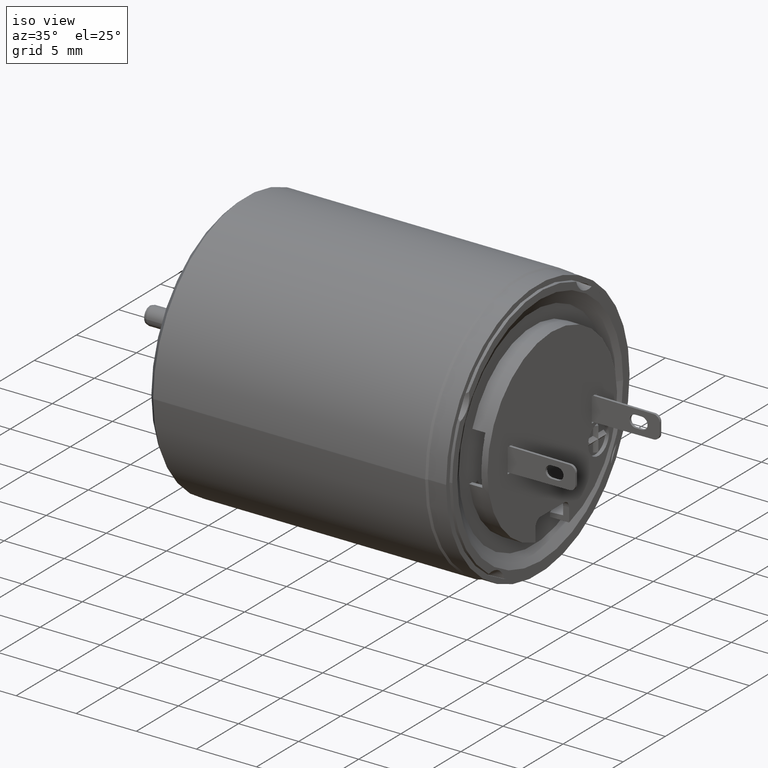
[diagram: clean part render]
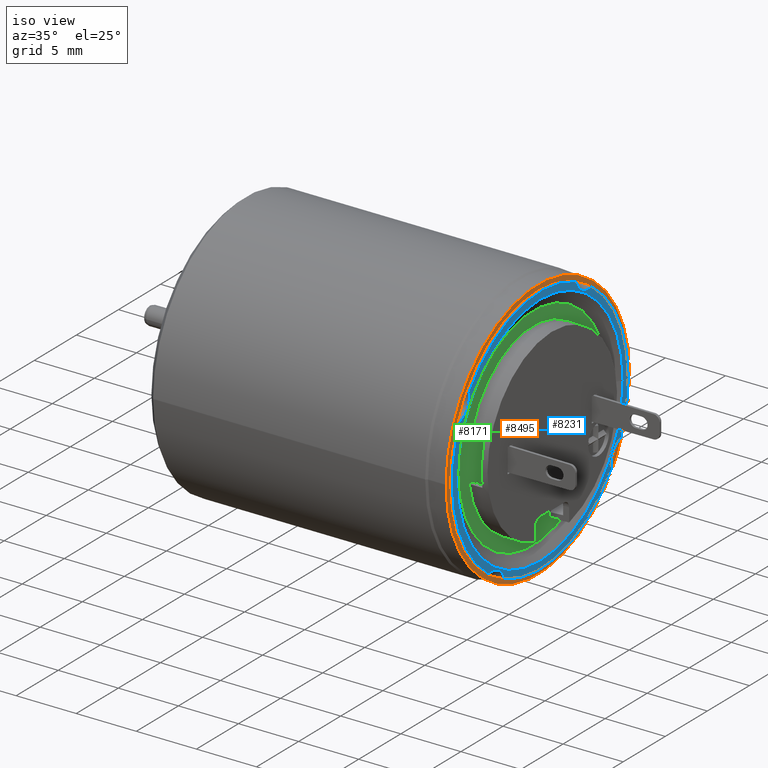
[diagram: same view with three faces highlighted in distinct colors, each labeled with its STEP entity id]
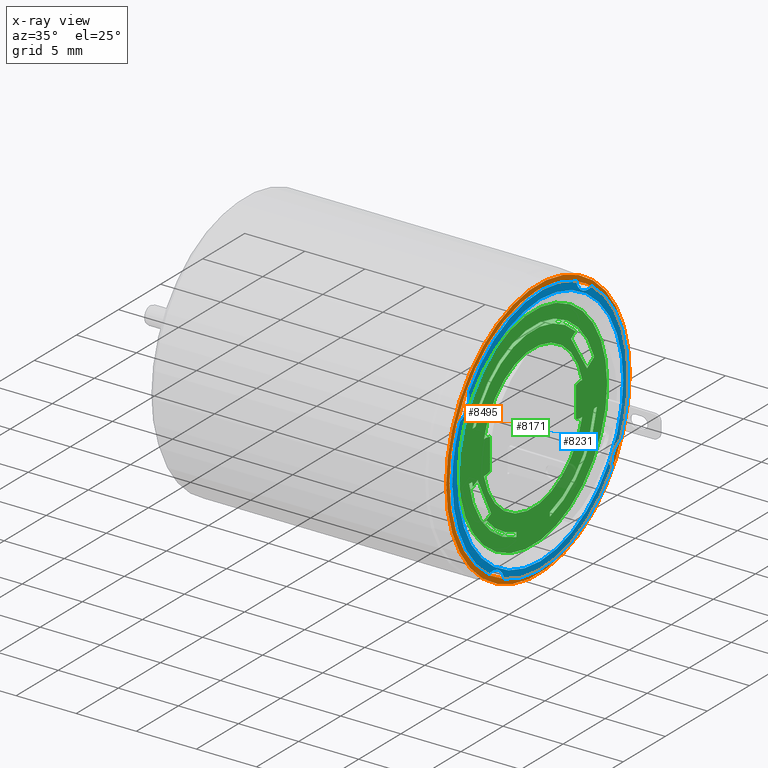
[diagram: x-ray of the same camera — body ghosted, the three highlighted faces saturated]
A machine part, iso view with three faces highlighted in distinct colors.
The next image is the same camera in x-ray (body ghosted, the three faces saturated) — at least one of them is partly hidden behind the body in this view.
Their STEP definitions:

[orange] entity #8495 — the highlighted planar face has unit normal (1, 0, 0).
#2387=CARTESIAN_POINT('',(8.9E0,1.115653234024E-14,0.E0));
#2388=DIRECTION('',(-1.E0,0.E0,0.E0));
#2389=DIRECTION('',(0.E0,1.E0,0.E0));
#2390=AXIS2_PLACEMENT_3D('',#2387,#2388,#2389);
#2392=CARTESIAN_POINT('',(8.9E0,1.115653234024E-14,0.E0));
#2393=DIRECTION('',(-1.E0,0.E0,0.E0));
#2394=DIRECTION('',(0.E0,-1.E0,0.E0));
#2395=AXIS2_PLACEMENT_3D('',#2392,#2393,#2394);
#2397=CARTESIAN_POINT('',(8.9E0,1.115653234024E-14,0.E0));
#2398=DIRECTION('',(1.E0,0.E0,0.E0));
#2399=DIRECTION('',(0.E0,1.E0,0.E0));
#2400=AXIS2_PLACEMENT_3D('',#2397,#2398,#2399);
#2402=CARTESIAN_POINT('',(8.9E0,1.115653234024E-14,0.E0));
#2403=DIRECTION('',(1.E0,0.E0,0.E0));
#2404=DIRECTION('',(0.E0,-1.E0,0.E0));
#2405=AXIS2_PLACEMENT_3D('',#2402,#2403,#2404);
#4421=CARTESIAN_POINT('',(8.9E0,1.05E1,0.E0));
#4422=VERTEX_POINT('',#4421);
#4423=CARTESIAN_POINT('',(8.9E0,-1.05E1,0.E0));
#4424=VERTEX_POINT('',#4423);
#4425=CARTESIAN_POINT('',(8.9E0,1.09E1,0.E0));
#4426=CARTESIAN_POINT('',(8.9E0,-1.09E1,0.E0));
#4427=VERTEX_POINT('',#4425);
#4428=VERTEX_POINT('',#4426);
#8480=CARTESIAN_POINT('',(8.9E0,1.065814103640E-14,0.E0));
#8481=DIRECTION('',(1.E0,0.E0,0.E0));
#8482=DIRECTION('',(0.E0,1.E0,0.E0));
#8483=AXIS2_PLACEMENT_3D('',#8480,#8481,#8482);
#8484=PLANE('',#8483);
#8486=ORIENTED_EDGE('',*,*,#8485,.T.);
#8488=ORIENTED_EDGE('',*,*,#8487,.T.);
#8489=EDGE_LOOP('',(#8486,#8488));
#8490=FACE_OUTER_BOUND('',#8489,.F.);
#8491=ORIENTED_EDGE('',*,*,#8462,.T.);
#8492=ORIENTED_EDGE('',*,*,#8473,.T.);
#8493=EDGE_LOOP('',(#8491,#8492));
#8494=FACE_BOUND('',#8493,.F.);
#8495=ADVANCED_FACE('',(#8490,#8494),#8484,.T.);
#2391=CIRCLE('',#2390,1.09E1);
#2396=CIRCLE('',#2395,1.09E1);
#2401=CIRCLE('',#2400,1.05E1);
#2406=CIRCLE('',#2405,1.05E1);
#8462=EDGE_CURVE('',#4422,#4424,#2401,.T.);
#8473=EDGE_CURVE('',#4424,#4422,#2406,.T.);
#8485=EDGE_CURVE('',#4427,#4428,#2391,.T.);
#8487=EDGE_CURVE('',#4428,#4427,#2396,.T.);

[blue] entity #8231 — the highlighted planar face has unit normal (1, 0, 0).
#2165=CARTESIAN_POINT('',(9.100000000002E0,-5.725E0,-9.915990873332E0));
#2166=DIRECTION('',(1.E0,0.E0,0.E0));
#2167=DIRECTION('',(0.E0,9.673882588756E-1,2.532981574935E-1));
#2168=AXIS2_PLACEMENT_3D('',#2165,#2166,#2167);
#2170=CARTESIAN_POINT('',(9.1E0,1.113203940425E-14,0.E0));
#2171=DIRECTION('',(-1.E0,0.E0,0.E0));
#2172=DIRECTION('',(0.E0,-5.857892091364E-1,-8.104634491816E-1));
#2173=AXIS2_PLACEMENT_3D('',#2170,#2171,#2172);
#2175=CARTESIAN_POINT('',(9.1E0,1.113203940425E-14,0.E0));
#2176=DIRECTION('',(-1.E0,0.E0,0.E0));
#2177=DIRECTION('',(0.E0,-1.E0,4.521635591201E-14));
#2178=AXIS2_PLACEMENT_3D('',#2175,#2176,#2177);
#2180=CARTESIAN_POINT('',(9.100000000002E0,-9.915990873332E0,5.725E0));
#2181=DIRECTION('',(1.E0,0.E0,0.E0));
#2182=DIRECTION('',(0.E0,2.532981574937E-1,-9.673882588756E-1));
#2183=AXIS2_PLACEMENT_3D('',#2180,#2181,#2182);
#2185=CARTESIAN_POINT('',(9.1E0,1.113203940425E-14,0.E0));
#2186=DIRECTION('',(-1.E0,0.E0,0.E0));
#2187=DIRECTION('',(0.E0,-8.104634491816E-1,5.857892091364E-1));
#2188=AXIS2_PLACEMENT_3D('',#2185,#2186,#2187);
#2190=CARTESIAN_POINT('',(9.100000000002E0,5.725E0,9.915990873332E0));
#2191=DIRECTION('',(1.E0,0.E0,0.E0));
#2192=DIRECTION('',(0.E0,-9.673882588756E-1,-2.532981574937E-1));
#2193=AXIS2_PLACEMENT_3D('',#2190,#2191,#2192);
#2195=CARTESIAN_POINT('',(9.1E0,1.113203940425E-14,0.E0));
#2196=DIRECTION('',(-1.E0,0.E0,0.E0));
#2197=DIRECTION('',(0.E0,5.857892091364E-1,8.104634491816E-1));
#2198=AXIS2_PLACEMENT_3D('',#2195,#2196,#2197);
#2200=CARTESIAN_POINT('',(9.1E0,1.113203940425E-14,0.E0));
#2201=DIRECTION('',(-1.E0,0.E0,0.E0));
#2202=DIRECTION('',(0.E0,1.E0,0.E0));
#2203=AXIS2_PLACEMENT_3D('',#2200,#2201,#2202);
#2205=CARTESIAN_POINT('',(9.100000000002E0,9.915990873332E0,-5.725E0));
#2206=DIRECTION('',(1.E0,0.E0,0.E0));
#2207=DIRECTION('',(0.E0,-2.532981574937E-1,9.673882588756E-1));
#2208=AXIS2_PLACEMENT_3D('',#2205,#2206,#2207);
#2210=CARTESIAN_POINT('',(9.1E0,1.113203940425E-14,0.E0));
#2211=DIRECTION('',(-1.E0,0.E0,0.E0));
#2212=DIRECTION('',(0.E0,8.104634491816E-1,-5.857892091364E-1));
#2213=AXIS2_PLACEMENT_3D('',#2210,#2211,#2212);
#2215=CARTESIAN_POINT('',(9.1E0,1.113203940422E-14,0.E0));
#2216=DIRECTION('',(1.E0,0.E0,0.E0));
#2217=DIRECTION('',(0.E0,-1.E0,0.E0));
#2218=AXIS2_PLACEMENT_3D('',#2215,#2216,#2217);
#2220=CARTESIAN_POINT('',(9.1E0,1.113203940422E-14,0.E0));
#2221=DIRECTION('',(1.E0,0.E0,0.E0));
#2222=DIRECTION('',(0.E0,1.E0,0.E0));
#2223=AXIS2_PLACEMENT_3D('',#2220,#2221,#2222);
#4696=CARTESIAN_POINT('',(9.1E0,9.85E0,0.E0));
#4698=VERTEX_POINT('',#4696);
#4701=CARTESIAN_POINT('',(9.1E0,-9.85E0,0.E0));
#4702=VERTEX_POINT('',#4701);
#4703=CARTESIAN_POINT('',(9.100000000002E0,-4.273917611690E0,
-9.536043637093E0));
#4704=CARTESIAN_POINT('',(9.100000000002E0,-6.121497235474E0,
-8.469343043951E0));
#4705=VERTEX_POINT('',#4703);
#4706=VERTEX_POINT('',#4704);
#4713=CARTESIAN_POINT('',(9.1E0,-1.045E1,4.733990977002E-13));
#4714=VERTEX_POINT('',#4713);
#4715=CARTESIAN_POINT('',(9.1E0,8.469343043948E0,-6.121497235475E0));
#4716=VERTEX_POINT('',#4715);
#4717=CARTESIAN_POINT('',(9.1E0,1.045E1,0.E0));
#4718=CARTESIAN_POINT('',(9.1E0,9.536043637092E0,-4.273917611687E0));
#4719=VERTEX_POINT('',#4717);
#4720=VERTEX_POINT('',#4718);
#4745=CARTESIAN_POINT('',(9.1E0,6.121497235475E0,8.469343043948E0));
#4746=VERTEX_POINT('',#4745);
#4747=CARTESIAN_POINT('',(9.1E0,-8.469343043948E0,6.121497235475E0));
#4748=CARTESIAN_POINT('',(9.1E0,4.273917611687E0,9.536043637091E0));
#4749=VERTEX_POINT('',#4747);
#4750=VERTEX_POINT('',#4748);
#4751=CARTESIAN_POINT('',(9.1E0,-9.536043637091E0,4.273917611687E0));
#4752=VERTEX_POINT('',#4751);
#8200=CARTESIAN_POINT('',(9.1E0,0.E0,0.E0));
#8201=DIRECTION('',(1.E0,0.E0,0.E0));
#8202=DIRECTION('',(0.E0,1.E0,0.E0));
#8203=AXIS2_PLACEMENT_3D('',#8200,#8201,#8202);
#8204=PLANE('',#8203);
#8206=ORIENTED_EDGE('',*,*,#8205,.T.);
#8208=ORIENTED_EDGE('',*,*,#8207,.T.);
#8210=ORIENTED_EDGE('',*,*,#8209,.T.);
#8212=ORIENTED_EDGE('',*,*,#8211,.T.);
#8214=ORIENTED_EDGE('',*,*,#8213,.T.);
#8216=ORIENTED_EDGE('',*,*,#8215,.T.);
#8218=ORIENTED_EDGE('',*,*,#8217,.T.);
#8220=ORIENTED_EDGE('',*,*,#8219,.T.);
#8222=ORIENTED_EDGE('',*,*,#8221,.T.);
#8224=ORIENTED_EDGE('',*,*,#8223,.T.);
#8225=EDGE_LOOP('',(#8206,#8208,#8210,#8212,#8214,#8216,#8218,#8220,#8222,
#8224));
#8226=FACE_OUTER_BOUND('',#8225,.F.);
#8227=ORIENTED_EDGE('',*,*,#8193,.T.);
#8228=ORIENTED_EDGE('',*,*,#8182,.T.);
#8229=EDGE_LOOP('',(#8227,#8228));
#8230=FACE_BOUND('',#8229,.F.);
#8231=ADVANCED_FACE('',(#8226,#8230),#8204,.T.);
#2169=CIRCLE('',#2168,1.499999999997E0);
#2174=CIRCLE('',#2173,1.045E1);
#2179=CIRCLE('',#2178,1.045E1);
#2184=CIRCLE('',#2183,1.499999999997E0);
#2189=CIRCLE('',#2188,1.045E1);
#2194=CIRCLE('',#2193,1.499999999997E0);
#2199=CIRCLE('',#2198,1.045E1);
#2204=CIRCLE('',#2203,1.045E1);
#2209=CIRCLE('',#2208,1.499999999997E0);
#2214=CIRCLE('',#2213,1.045E1);
#2219=CIRCLE('',#2218,9.85E0);
#2224=CIRCLE('',#2223,9.85E0);
#8182=EDGE_CURVE('',#4698,#4702,#2224,.T.);
#8193=EDGE_CURVE('',#4702,#4698,#2219,.T.);
#8205=EDGE_CURVE('',#4705,#4706,#2169,.T.);
#8207=EDGE_CURVE('',#4706,#4714,#2174,.T.);
#8209=EDGE_CURVE('',#4714,#4752,#2179,.T.);
#8211=EDGE_CURVE('',#4752,#4749,#2184,.T.);
#8213=EDGE_CURVE('',#4749,#4750,#2189,.T.);
#8215=EDGE_CURVE('',#4750,#4746,#2194,.T.);
#8217=EDGE_CURVE('',#4746,#4719,#2199,.T.);
#8219=EDGE_CURVE('',#4719,#4720,#2204,.T.);
#8221=EDGE_CURVE('',#4720,#4716,#2209,.T.);
#8223=EDGE_CURVE('',#4716,#4705,#2214,.T.);

[green] entity #8171 — the highlighted planar face has unit normal (1, 0, 0).
#2003=CARTESIAN_POINT('',(8.5E0,1.120551821217E-14,0.E0));
#2004=DIRECTION('',(-1.E0,0.E0,0.E0));
#2005=DIRECTION('',(0.E0,-1.E0,0.E0));
#2006=AXIS2_PLACEMENT_3D('',#2003,#2004,#2005);
#2008=CARTESIAN_POINT('',(8.5E0,1.120551821217E-14,0.E0));
#2009=DIRECTION('',(-1.E0,0.E0,0.E0));
#2010=DIRECTION('',(0.E0,1.E0,0.E0));
#2011=AXIS2_PLACEMENT_3D('',#2008,#2009,#2010);
#2013=CARTESIAN_POINT('',(8.5E0,1.044976660676E-13,0.E0));
#2014=DIRECTION('',(1.E0,-1.005529260564E-14,0.E0));
#2015=DIRECTION('',(0.E0,9.728982300885E-1,2.312337213528E-1));
#2016=AXIS2_PLACEMENT_3D('',#2013,#2014,#2015);
#2018=CARTESIAN_POINT('',(8.5E0,-5.65E0,0.E0));
#2019=DIRECTION('',(-1.E0,0.E0,0.E0));
#2020=DIRECTION('',(0.E0,-1.338495575221E-1,9.910016629406E-1));
#2021=AXIS2_PLACEMENT_3D('',#2018,#2019,#2020);
#2023=DIRECTION('',(0.E0,1.E0,8.623160209045E-13));
#2024=VECTOR('',#2023,3.038475772916E-2);
#2025=CARTESIAN_POINT('',(8.5E0,-5.130384757729E0,1.3E0));
#2026=LINE('',#2025,#2024);
#2027=DIRECTION('',(0.E0,0.E0,-1.E0));
#2028=VECTOR('',#2027,2.6E0);
#2029=CARTESIAN_POINT('',(8.5E0,-5.1E0,1.3E0));
#2030=LINE('',#2029,#2028);
#2031=CARTESIAN_POINT('',(8.5E0,-5.65E0,0.E0));
#2032=DIRECTION('',(-1.E0,0.E0,0.E0));
#2033=DIRECTION('',(0.E0,3.711537444793E-1,-9.285714285713E-1));
#2034=AXIS2_PLACEMENT_3D('',#2031,#2032,#2033);
#2036=CARTESIAN_POINT('',(8.5E0,-5.65E0,0.E0));
#2037=DIRECTION('',(-1.E0,0.E0,0.E0));
#2038=DIRECTION('',(0.E0,0.E0,-1.E0));
#2039=AXIS2_PLACEMENT_3D('',#2036,#2037,#2038);
#2041=CARTESIAN_POINT('',(8.5E0,1.044976660676E-13,0.E0));
#2042=DIRECTION('',(1.E0,-1.005529260564E-14,0.E0));
#2043=DIRECTION('',(0.E0,-9.728982300885E-1,-2.312337213528E-1));
#2044=AXIS2_PLACEMENT_3D('',#2041,#2042,#2043);
#2046=CARTESIAN_POINT('',(8.5E0,5.65E0,0.E0));
#2047=DIRECTION('',(-1.E0,0.E0,0.E0));
#2048=DIRECTION('',(0.E0,1.338495575222E-1,-9.910016629406E-1));
#2049=AXIS2_PLACEMENT_3D('',#2046,#2047,#2048);
#2051=CARTESIAN_POINT('',(8.5E0,5.65E0,0.E0));
#2052=DIRECTION('',(-1.E0,0.E0,0.E0));
#2053=DIRECTION('',(0.E0,0.E0,-1.E0));
#2054=AXIS2_PLACEMENT_3D('',#2051,#2052,#2053);
#2056=CARTESIAN_POINT('',(8.5E0,5.65E0,0.E0));
#2057=DIRECTION('',(-1.E0,0.E0,0.E0));
#2058=DIRECTION('',(0.E0,-3.711537444793E-1,9.285714285713E-1));
#2059=AXIS2_PLACEMENT_3D('',#2056,#2057,#2058);
#2061=CARTESIAN_POINT('',(8.5E0,1.120551821220E-14,0.E0));
#2062=DIRECTION('',(1.E0,0.E0,0.E0));
#2063=DIRECTION('',(0.E0,2.597402597403E-1,-9.656785166245E-1));
#2064=AXIS2_PLACEMENT_3D('',#2061,#2062,#2063);
#2066=DIRECTION('',(0.E0,-1.E0,0.E0));
#2067=VECTOR('',#2066,3.475748986508E-1);
#2068=CARTESIAN_POINT('',(8.5E0,7.589466384404E0,-1.3E0));
#2069=LINE('',#2068,#2067);
#2070=CARTESIAN_POINT('',(8.5E0,0.E0,0.E0));
#2071=DIRECTION('',(1.E0,0.E0,0.E0));
#2072=DIRECTION('',(0.E0,2.718259759825E-1,-9.623464234781E-1));
#2073=AXIS2_PLACEMENT_3D('',#2070,#2071,#2072);
#2075=DIRECTION('',(0.E0,0.E0,-1.E0));
#2076=VECTOR('',#2075,3.551178037676E-1);
#2077=CARTESIAN_POINT('',(8.5E0,2.E0,-7.080606774241E0));
#2078=LINE('',#2077,#2076);
#2079=CARTESIAN_POINT('',(8.5E0,1.120551821220E-14,0.E0));
#2080=DIRECTION('',(1.E0,0.E0,0.E0));
#2081=DIRECTION('',(0.E0,9.365068247958E-1,3.506493506494E-1));
#2082=AXIS2_PLACEMENT_3D('',#2079,#2080,#2081);
#2084=DIRECTION('',(0.E0,1.E0,1.331919927738E-14));
#2085=VECTOR('',#2084,3.667623861329E-1);
#2086=CARTESIAN_POINT('',(8.5E0,-7.211102550928E0,2.7E0));
#2087=LINE('',#2086,#2085);
#2088=CARTESIAN_POINT('',(8.5E0,0.E0,0.E0));
#2089=DIRECTION('',(1.E0,0.E0,0.E0));
#2090=DIRECTION('',(0.E0,6.884869095566E-1,7.252487679199E-1));
#2091=AXIS2_PLACEMENT_3D('',#2088,#2089,#2090);
#2093=DIRECTION('',(0.E0,8.412277974367E-1,5.406808604157E-1));
#2094=VECTOR('',#2093,5.936586777669E-2);
#2095=CARTESIAN_POINT('',(8.5E0,5.015704498565E0,5.304027562436E0));
#2096=LINE('',#2095,#2094);
#2097=DIRECTION('',(0.E0,-8.412277974359E-1,-5.406808604169E-1));
#2098=VECTOR('',#2097,5.871362340511E-1);
#2099=CARTESIAN_POINT('',(8.5E0,5.015704498565E0,5.304027562436E0));
#2100=LINE('',#2099,#2098);
#2101=DIRECTION('',(0.E0,5.406808604177E-1,-8.412277974354E-1));
#2102=VECTOR('',#2101,3.5E0);
#2103=CARTESIAN_POINT('',(8.5E0,4.521789177599E0,4.986574238227E0));
#2104=LINE('',#2103,#2102);
#2105=DIRECTION('',(0.E0,8.412277974357E-1,5.406808604172E-1));
#2106=VECTOR('',#2105,9.984998499699E-1);
#2107=CARTESIAN_POINT('',(8.5E0,6.414172189061E0,2.042276947203E0));
#2108=LINE('',#2107,#2106);
#2109=CARTESIAN_POINT('',(8.5E0,0.E0,0.E0));
#2110=DIRECTION('',(1.E0,0.E0,0.E0));
#2111=DIRECTION('',(0.E0,9.420958465703E-1,3.353437279495E-1));
#2112=AXIS2_PLACEMENT_3D('',#2109,#2110,#2111);
#2114=CARTESIAN_POINT('',(8.5E0,1.120551821220E-14,0.E0));
#2115=DIRECTION('',(1.E0,0.E0,0.E0));
#2116=DIRECTION('',(0.E0,-9.856449849875E-1,-1.688311688312E-1));
#2117=AXIS2_PLACEMENT_3D('',#2114,#2115,#2116);
#2119=DIRECTION('',(0.E0,0.E0,1.E0));
#2120=VECTOR('',#2119,3.551178037676E-1);
#2121=CARTESIAN_POINT('',(8.5E0,-2.E0,-7.435724578009E0));
#2122=LINE('',#2121,#2120);
#2123=CARTESIAN_POINT('',(8.5E0,0.E0,0.E0));
#2124=DIRECTION('',(1.E0,0.E0,0.E0));
#2125=DIRECTION('',(0.E0,-7.563155603722E-1,-6.542069803502E-1));
#2126=AXIS2_PLACEMENT_3D('',#2123,#2124,#2125);
#2128=DIRECTION('',(0.E0,-8.902128046112E-1,-4.555449072334E-1));
#2129=VECTOR('',#2128,2.314629271805E-1);
#2130=CARTESIAN_POINT('',(8.5E0,-5.35865283E0,-4.707983287400E0));
#2131=LINE('',#2130,#2129);
#2132=DIRECTION('',(0.E0,8.902128046106E-1,4.555449072346E-1));
#2133=VECTOR('',#2132,4.150391746472E-1);
#2134=CARTESIAN_POINT('',(8.5E0,-5.35865283E0,-4.707983287400E0));
#2135=LINE('',#2134,#2133);
#2136=DIRECTION('',(0.E0,-4.555449072335E-1,8.902128046111E-1));
#2137=VECTOR('',#2136,3.5E0);
#2138=CARTESIAN_POINT('',(8.5E0,-4.989179642314E0,-4.518914305087E0));
#2139=LINE('',#2138,#2137);
#2140=DIRECTION('',(0.E0,-8.902128046109E-1,-4.555449072340E-1));
#2141=VECTOR('',#2140,5.871362340511E-1);
#2142=CARTESIAN_POINT('',(8.5E0,-6.583586817631E0,-1.403169488948E0));
#2143=LINE('',#2142,#2141);
#2144=DIRECTION('',(0.E0,8.902128046114E-1,4.555449072330E-1));
#2145=VECTOR('',#2144,5.936586777664E-2);
#2146=CARTESIAN_POINT('',(8.5E0,-7.159111266886E0,-1.697680228952E0));
#2147=LINE('',#2146,#2145);
#2148=CARTESIAN_POINT('',(8.5E0,0.E0,0.E0));
#2149=DIRECTION('',(1.E0,0.E0,0.E0));
#2150=DIRECTION('',(0.E0,-9.842671105371E-1,-1.766868843886E-1));
#2151=AXIS2_PLACEMENT_3D('',#2148,#2149,#2150);
#2153=DIRECTION('',(0.E0,-1.E0,0.E0));
#2154=VECTOR('',#2153,3.475748986507E-1);
#2155=CARTESIAN_POINT('',(8.5E0,-7.241891485753E0,-1.3E0));
#2156=LINE('',#2155,#2154);
#3273=DIRECTION('',(0.E0,1.E0,1.753863093367E-13));
#3274=VECTOR('',#3273,3.038475772913E-2);
#3275=CARTESIAN_POINT('',(8.5E0,-5.130384757729E0,-1.3E0));
#3276=LINE('',#3275,#3274);
#3323=DIRECTION('',(0.E0,1.E0,1.103472196243E-12));
#3324=VECTOR('',#3323,3.038475772914E-2);
#3325=CARTESIAN_POINT('',(8.5E0,5.1E0,-1.3E0));
#3326=LINE('',#3325,#3324);
#3335=DIRECTION('',(0.E0,0.E0,-1.E0));
#3336=VECTOR('',#3335,2.6E0);
#3337=CARTESIAN_POINT('',(8.5E0,5.1E0,1.3E0));
#3338=LINE('',#3337,#3336);
#3355=DIRECTION('',(0.E0,-1.E0,4.092347217862E-13));
#3356=VECTOR('',#3355,3.038475772908E-2);
#3357=CARTESIAN_POINT('',(8.5E0,5.130384757729E0,1.3E0));
#3358=LINE('',#3357,#3356);
#4657=CARTESIAN_POINT('',(8.5E0,-5.837389380531E0,1.387402328117E0));
#4658=CARTESIAN_POINT('',(8.5E0,-5.130384757729E0,1.3E0));
#4659=VERTEX_POINT('',#4657);
#4660=VERTEX_POINT('',#4658);
#4661=CARTESIAN_POINT('',(8.5E0,-5.1E0,1.3E0));
#4662=VERTEX_POINT('',#4661);
#4663=CARTESIAN_POINT('',(8.5E0,-5.1E0,-1.3E0));
#4664=VERTEX_POINT('',#4663);
#4665=CARTESIAN_POINT('',(8.5E0,-5.130384757729E0,-1.3E0));
#4666=VERTEX_POINT('',#4665);
#4667=CARTESIAN_POINT('',(8.5E0,-5.65E0,-1.4E0));
#4668=VERTEX_POINT('',#4667);
#4669=CARTESIAN_POINT('',(8.5E0,-5.837389380531E0,-1.387402328117E0));
#4670=VERTEX_POINT('',#4669);
#4671=CARTESIAN_POINT('',(8.5E0,5.837389380531E0,-1.387402328117E0));
#4672=CARTESIAN_POINT('',(8.5E0,5.65E0,-1.4E0));
#4673=VERTEX_POINT('',#4671);
#4674=VERTEX_POINT('',#4672);
#4675=CARTESIAN_POINT('',(8.5E0,5.130384757729E0,-1.3E0));
#4676=VERTEX_POINT('',#4675);
#4677=CARTESIAN_POINT('',(8.5E0,5.1E0,-1.3E0));
#4678=VERTEX_POINT('',#4677);
#4679=CARTESIAN_POINT('',(8.5E0,5.1E0,1.3E0));
#4680=VERTEX_POINT('',#4679);
#4681=CARTESIAN_POINT('',(8.5E0,5.130384757729E0,1.3E0));
#4682=VERTEX_POINT('',#4681);
#4683=CARTESIAN_POINT('',(8.5E0,5.837389380531E0,1.387402328117E0));
#4684=VERTEX_POINT('',#4683);
#4685=CARTESIAN_POINT('',(8.5E0,4.521789177599E0,4.986574238227E0));
#4686=CARTESIAN_POINT('',(8.5E0,6.414172189061E0,2.042276947203E0));
#4687=VERTEX_POINT('',#4685);
#4688=VERTEX_POINT('',#4686);
#4689=CARTESIAN_POINT('',(8.5E0,7.254138018591E0,2.582146705211E0));
#4690=VERTEX_POINT('',#4689);
#4691=CARTESIAN_POINT('',(8.5E0,-4.989179642314E0,-4.518914305087E0));
#4692=CARTESIAN_POINT('',(8.5E0,-6.583586817631E0,-1.403169488948E0));
#4693=VERTEX_POINT('',#4691);
#4694=VERTEX_POINT('',#4692);
#4695=CARTESIAN_POINT('',(8.5E0,8.810769515459E0,0.E0));
#4697=VERTEX_POINT('',#4695);
#4699=CARTESIAN_POINT('',(8.5E0,-8.810769515459E0,0.E0));
#4700=VERTEX_POINT('',#4699);
#5250=CARTESIAN_POINT('',(8.5E0,2.E0,-7.435724578009E0));
#5251=CARTESIAN_POINT('',(8.5E0,7.589466384404E0,-1.3E0));
#5252=VERTEX_POINT('',#5250);
#5253=VERTEX_POINT('',#5251);
#5254=CARTESIAN_POINT('',(8.5E0,7.211102550928E0,2.7E0));
#5255=CARTESIAN_POINT('',(8.5E0,-7.211102550928E0,2.7E0));
#5256=VERTEX_POINT('',#5254);
#5257=VERTEX_POINT('',#5255);
#5258=CARTESIAN_POINT('',(8.5E0,-7.589466384404E0,-1.3E0));
#5259=CARTESIAN_POINT('',(8.5E0,-2.E0,-7.435724578009E0));
#5260=VERTEX_POINT('',#5258);
#5261=VERTEX_POINT('',#5259);
#5262=CARTESIAN_POINT('',(8.5E0,-5.564704091569E0,-4.813425045091E0));
#5263=CARTESIAN_POINT('',(8.5E0,-2.E0,-7.080606774241E0));
#5264=VERTEX_POINT('',#5262);
#5265=VERTEX_POINT('',#5263);
#5266=CARTESIAN_POINT('',(8.5E0,-7.241891485753E0,-1.3E0));
#5267=CARTESIAN_POINT('',(8.5E0,-7.159111266886E0,-1.697680228952E0));
#5268=VERTEX_POINT('',#5266);
#5269=VERTEX_POINT('',#5267);
#5270=CARTESIAN_POINT('',(8.5E0,5.065644716757E0,5.336125550904E0));
#5271=CARTESIAN_POINT('',(8.5E0,-6.844340164795E0,2.7E0));
#5272=VERTEX_POINT('',#5270);
#5273=VERTEX_POINT('',#5271);
#5274=CARTESIAN_POINT('',(8.5E0,2.E0,-7.080606774241E0));
#5275=CARTESIAN_POINT('',(8.5E0,7.241891485753E0,-1.3E0));
#5276=VERTEX_POINT('',#5274);
#5277=VERTEX_POINT('',#5275);
#5278=CARTESIAN_POINT('',(8.5E0,-5.35865283E0,-4.707983287400E0));
#5279=VERTEX_POINT('',#5278);
#5280=CARTESIAN_POINT('',(8.5E0,-7.106263011234E0,-1.670636410222E0));
#5281=VERTEX_POINT('',#5280);
#5282=CARTESIAN_POINT('',(8.5E0,5.015704498565E0,5.304027562436E0));
#5283=VERTEX_POINT('',#5282);
#8084=CARTESIAN_POINT('',(8.5E0,1.065814103640E-14,0.E0));
#8085=DIRECTION('',(1.E0,0.E0,0.E0));
#8086=DIRECTION('',(0.E0,1.E0,0.E0));
#8087=AXIS2_PLACEMENT_3D('',#8084,#8085,#8086);
#8088=PLANE('',#8087);
#8090=ORIENTED_EDGE('',*,*,#8089,.T.);
#8092=ORIENTED_EDGE('',*,*,#8091,.T.);
#8093=EDGE_LOOP('',(#8090,#8092));
#8094=FACE_OUTER_BOUND('',#8093,.F.);
#8096=ORIENTED_EDGE('',*,*,#8095,.T.);
#8098=ORIENTED_EDGE('',*,*,#8097,.T.);
#8100=ORIENTED_EDGE('',*,*,#8099,.T.);
#8102=ORIENTED_EDGE('',*,*,#8101,.T.);
#8104=ORIENTED_EDGE('',*,*,#8103,.F.);
#8106=ORIENTED_EDGE('',*,*,#8105,.T.);
#8108=ORIENTED_EDGE('',*,*,#8107,.T.);
#8110=ORIENTED_EDGE('',*,*,#8109,.T.);
#8112=ORIENTED_EDGE('',*,*,#8111,.T.);
#8114=ORIENTED_EDGE('',*,*,#8113,.T.);
#8116=ORIENTED_EDGE('',*,*,#8115,.F.);
#8118=ORIENTED_EDGE('',*,*,#8117,.F.);
#8120=ORIENTED_EDGE('',*,*,#8119,.F.);
#8122=ORIENTED_EDGE('',*,*,#8121,.T.);
#8123=EDGE_LOOP('',(#8096,#8098,#8100,#8102,#8104,#8106,#8108,#8110,#8112,#8114,
#8116,#8118,#8120,#8122));
#8124=FACE_BOUND('',#8123,.F.);
#8126=ORIENTED_EDGE('',*,*,#8125,.T.);
#8128=ORIENTED_EDGE('',*,*,#8127,.T.);
#8130=ORIENTED_EDGE('',*,*,#8129,.F.);
#8132=ORIENTED_EDGE('',*,*,#8131,.T.);
#8133=EDGE_LOOP('',(#8126,#8128,#8130,#8132));
#8134=FACE_BOUND('',#8133,.F.);
#8136=ORIENTED_EDGE('',*,*,#8135,.T.);
#8138=ORIENTED_EDGE('',*,*,#8137,.T.);
#8140=ORIENTED_EDGE('',*,*,#8139,.F.);
#8142=ORIENTED_EDGE('',*,*,#8141,.F.);
#8144=ORIENTED_EDGE('',*,*,#8143,.T.);
#8146=ORIENTED_EDGE('',*,*,#8145,.T.);
#8148=ORIENTED_EDGE('',*,*,#8147,.T.);
#8150=ORIENTED_EDGE('',*,*,#8149,.T.);
#8151=EDGE_LOOP('',(#8136,#8138,#8140,#8142,#8144,#8146,#8148,#8150));
#8152=FACE_BOUND('',#8151,.F.);
#8154=ORIENTED_EDGE('',*,*,#8153,.T.);
#8156=ORIENTED_EDGE('',*,*,#8155,.T.);
#8158=ORIENTED_EDGE('',*,*,#8157,.F.);
#8159=ORIENTED_EDGE('',*,*,#8074,.F.);
#8160=ORIENTED_EDGE('',*,*,#7998,.T.);
#8161=ORIENTED_EDGE('',*,*,#8016,.T.);
#8162=ORIENTED_EDGE('',*,*,#8033,.T.);
#8164=ORIENTED_EDGE('',*,*,#8163,.F.);
#8166=ORIENTED_EDGE('',*,*,#8165,.F.);
#8168=ORIENTED_EDGE('',*,*,#8167,.T.);
#8169=EDGE_LOOP('',(#8154,#8156,#8158,#8159,#8160,#8161,#8162,#8164,#8166,
#8168));
#8170=FACE_BOUND('',#8169,.F.);
#8171=ADVANCED_FACE('',(#8094,#8124,#8134,#8152,#8170),#8088,.T.);
#2007=CIRCLE('',#2006,8.810769515459E0);
#2012=CIRCLE('',#2011,8.810769515459E0);
#2017=CIRCLE('',#2016,6.E0);
#2022=CIRCLE('',#2021,1.4E0);
#2035=CIRCLE('',#2034,1.4E0);
#2040=CIRCLE('',#2039,1.4E0);
#2045=CIRCLE('',#2044,6.E0);
#2050=CIRCLE('',#2049,1.4E0);
#2055=CIRCLE('',#2054,1.4E0);
#2060=CIRCLE('',#2059,1.4E0);
#2065=CIRCLE('',#2064,7.7E0);
#2074=CIRCLE('',#2073,7.357648557211E0);
#2083=CIRCLE('',#2082,7.7E0);
#2092=CIRCLE('',#2091,7.357648557211E0);
#2113=CIRCLE('',#2112,7.7E0);
#2118=CIRCLE('',#2117,7.7E0);
#2127=CIRCLE('',#2126,7.357648557211E0);
#2152=CIRCLE('',#2151,7.357648557211E0);
#7998=EDGE_CURVE('',#5279,#4693,#2135,.T.);
#8016=EDGE_CURVE('',#4693,#4694,#2139,.T.);
#8033=EDGE_CURVE('',#4694,#5281,#2143,.T.);
#8074=EDGE_CURVE('',#5279,#5264,#2131,.T.);
#8089=EDGE_CURVE('',#4700,#4697,#2007,.T.);
#8091=EDGE_CURVE('',#4697,#4700,#2012,.T.);
#8095=EDGE_CURVE('',#4684,#4659,#2017,.T.);
#8097=EDGE_CURVE('',#4659,#4660,#2022,.T.);
#8099=EDGE_CURVE('',#4660,#4662,#2026,.T.);
#8101=EDGE_CURVE('',#4662,#4664,#2030,.T.);
#8103=EDGE_CURVE('',#4666,#4664,#3276,.T.);
#8105=EDGE_CURVE('',#4666,#4668,#2035,.T.);
#8107=EDGE_CURVE('',#4668,#4670,#2040,.T.);
#8109=EDGE_CURVE('',#4670,#4673,#2045,.T.);
#8111=EDGE_CURVE('',#4673,#4674,#2050,.T.);
#8113=EDGE_CURVE('',#4674,#4676,#2055,.T.);
#8115=EDGE_CURVE('',#4678,#4676,#3326,.T.);
#8117=EDGE_CURVE('',#4680,#4678,#3338,.T.);
#8119=EDGE_CURVE('',#4682,#4680,#3358,.T.);
#8121=EDGE_CURVE('',#4682,#4684,#2060,.T.);
#8125=EDGE_CURVE('',#5252,#5253,#2065,.T.);
#8127=EDGE_CURVE('',#5253,#5277,#2069,.T.);
#8129=EDGE_CURVE('',#5276,#5277,#2074,.T.);
#8131=EDGE_CURVE('',#5276,#5252,#2078,.T.);
#8135=EDGE_CURVE('',#5256,#5257,#2083,.T.);
#8137=EDGE_CURVE('',#5257,#5273,#2087,.T.);
#8139=EDGE_CURVE('',#5272,#5273,#2092,.T.);
#8141=EDGE_CURVE('',#5283,#5272,#2096,.T.);
#8143=EDGE_CURVE('',#5283,#4687,#2100,.T.);
#8145=EDGE_CURVE('',#4687,#4688,#2104,.T.);
#8147=EDGE_CURVE('',#4688,#4690,#2108,.T.);
#8149=EDGE_CURVE('',#4690,#5256,#2113,.T.);
#8153=EDGE_CURVE('',#5260,#5261,#2118,.T.);
#8155=EDGE_CURVE('',#5261,#5265,#2122,.T.);
#8157=EDGE_CURVE('',#5264,#5265,#2127,.T.);
#8163=EDGE_CURVE('',#5269,#5281,#2147,.T.);
#8165=EDGE_CURVE('',#5268,#5269,#2152,.T.);
#8167=EDGE_CURVE('',#5268,#5260,#2156,.T.);